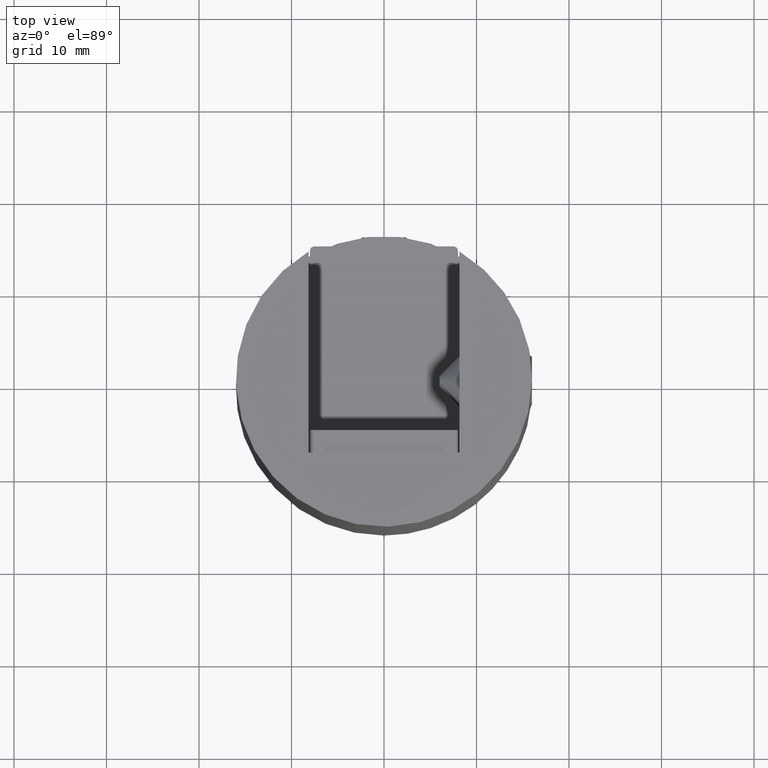
[diagram: clean part render]
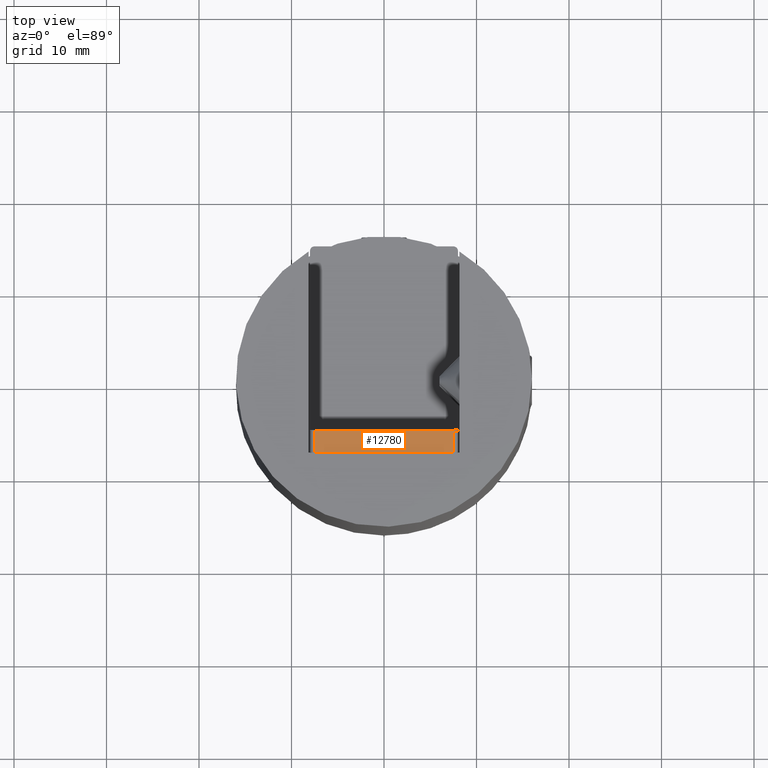
[diagram: same view with one face highlighted and labeled with its STEP entity id]
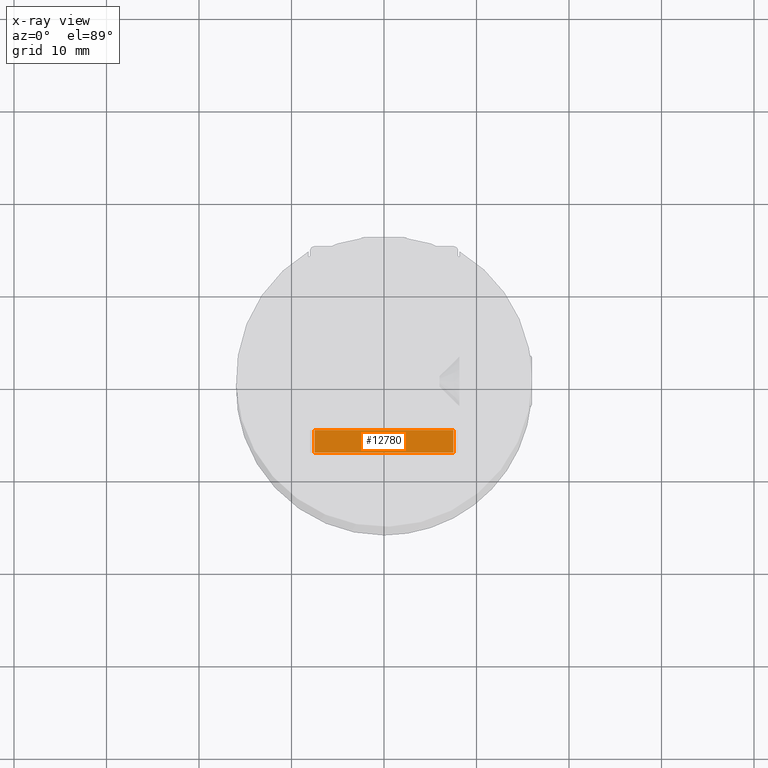
[diagram: x-ray of the same camera — body ghosted, the highlighted face saturated]
A machine part, top view. The second image highlights one B-rep face of the part: STEP entity #12780.
The next image is the same camera in x-ray: the body ghosted, the highlighted face saturated — about 0% of this face is hidden behind the body in this view.
In plain terms, the highlighted planar face has unit normal (0, 0, 1).
Its self-contained STEP definition (entity closure, byte-faithful):
#153 = DIRECTION ( 'NONE',  ( -0.000000000000000000, -1.000000000000000000, -0.000000000000000000 ) ) ;
#1462 = VECTOR ( 'NONE', #153, 1000.000000000000000 ) ;
#1656 = CARTESIAN_POINT ( 'NONE',  ( -16.19999999999999929, 2.450000000000000178, 7.499999999999996447 ) ) ;
#1917 = ORIENTED_EDGE ( 'NONE', *, *, #12085, .F. ) ;
#2986 = VERTEX_POINT ( 'NONE', #16814 ) ;
#4625 = EDGE_CURVE ( 'NONE', #2986, #5903, #11290, .T. ) ;
#4785 = VECTOR ( 'NONE', #11394, 1000.000000000000000 ) ;
#5903 = VERTEX_POINT ( 'NONE', #13689 ) ;
#6537 = DIRECTION ( 'NONE',  ( 0.000000000000000000, 0.000000000000000000, -1.000000000000000000 ) ) ;
#7022 = CARTESIAN_POINT ( 'NONE',  ( -16.19999999999999929, 0.000000000000000000, 7.499999999999996447 ) ) ;
#7453 = VECTOR ( 'NONE', #14625, 1000.000000000000000 ) ;
#7730 = LINE ( 'NONE', #8159, #4785 ) ;
#7914 = EDGE_LOOP ( 'NONE', ( #1917, #9125, #10015, #19939 ) ) ;
#8159 = CARTESIAN_POINT ( 'NONE',  ( -16.19999999999999929, 2.450000000000000178, 7.499999999999996447 ) ) ;
#8420 = DIRECTION ( 'NONE',  ( -1.000000000000000000, 0.000000000000000000, 0.000000000000000000 ) ) ;
#8671 = VECTOR ( 'NONE', #6537, 1000.000000000000000 ) ;
#8925 = CARTESIAN_POINT ( 'NONE',  ( -16.19999999999999929, 2.450000000000000178, 7.499999999999996447 ) ) ;
#8978 = VERTEX_POINT ( 'NONE', #9833 ) ;
#9125 = ORIENTED_EDGE ( 'NONE', *, *, #10960, .F. ) ;
#9833 = CARTESIAN_POINT ( 'NONE',  ( -16.19999999999999929, 2.450000000000000178, 7.499999999999996447 ) ) ;
#9895 = CARTESIAN_POINT ( 'NONE',  ( -16.19999999999999929, 0.000000000000000000, 7.499999999999996447 ) ) ;
#10015 = ORIENTED_EDGE ( 'NONE', *, *, #12353, .T. ) ;
#10880 = LINE ( 'NONE', #1656, #8671 ) ;
#10960 = EDGE_CURVE ( 'NONE', #8978, #14903, #7730, .T. ) ;
#11290 = LINE ( 'NONE', #15718, #1462 ) ;
#11394 = DIRECTION ( 'NONE',  ( -0.000000000000000000, -1.000000000000000000, -0.000000000000000000 ) ) ;
#12085 = EDGE_CURVE ( 'NONE', #14903, #5903, #12135, .T. ) ;
#12135 = LINE ( 'NONE', #9895, #7453 ) ;
#12353 = EDGE_CURVE ( 'NONE', #8978, #2986, #10880, .T. ) ;
#12780 = ADVANCED_FACE ( 'NONE', ( #15101 ), #19419, .T. ) ;
#13689 = CARTESIAN_POINT ( 'NONE',  ( -16.19999999999999929, 0.000000000000000000, -7.499999999999996447 ) ) ;
#14625 = DIRECTION ( 'NONE',  ( 0.000000000000000000, 0.000000000000000000, -1.000000000000000000 ) ) ;
#14903 = VERTEX_POINT ( 'NONE', #7022 ) ;
#15101 = FACE_OUTER_BOUND ( 'NONE', #7914, .T. ) ;
#15718 = CARTESIAN_POINT ( 'NONE',  ( -16.19999999999999929, 2.450000000000000178, -7.499999999999996447 ) ) ;
#16814 = CARTESIAN_POINT ( 'NONE',  ( -16.19999999999999929, 2.450000000000000178, -7.499999999999996447 ) ) ;
#18153 = AXIS2_PLACEMENT_3D ( 'NONE', #8925, #8420, #19831 ) ;
#19419 = PLANE ( 'NONE',  #18153 ) ;
#19831 = DIRECTION ( 'NONE',  ( 0.000000000000000000, 0.000000000000000000, 1.000000000000000000 ) ) ;
#19939 = ORIENTED_EDGE ( 'NONE', *, *, #4625, .T. ) ;